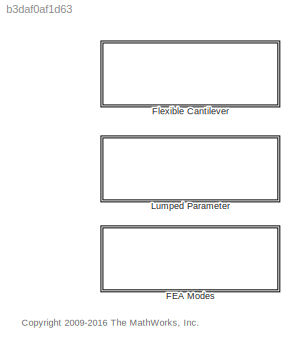
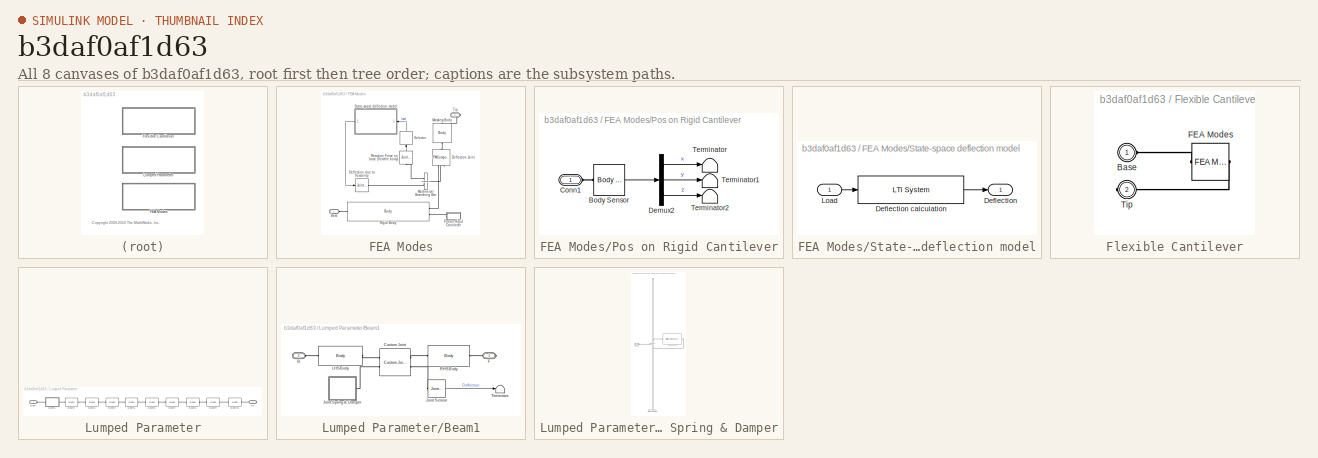
[diagram: thumbnail index - all 8 canvases of the model, root first then tree order]
MODEL slx_b3daf0af1d63
KIND library
CONFIG AbsTol = auto
CONFIG EnableMultiTasking = off
CONFIG FixedStep = auto
CONFIG MaxStep = auto
CONFIG MinStep = auto
CONFIG RelTol = 1e-3
CONFIG SampleTimeConstraint = Unconstrained
CONFIG Solver = ode45
CONFIG SolverName = ode45
CONFIG StartTime = 0.0
CONFIG StopTime = 10.0
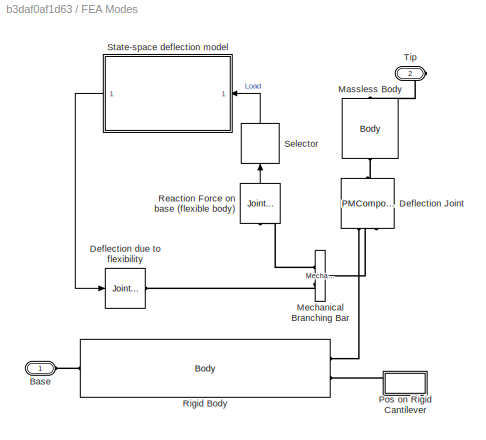
BLOCK [SubSystem] FEA Modes
  Ports = [0, 0, 0, 0, 0, 1, 1]
  RequestExecContextInheritance = off
  ShowPortLabels = FromPortBlockName
  Variant = off
BLOCK [PMIOPort] FEA Modes/Base
  Port = 1
  Side = Left
BLOCK [PMComponent] FEA Modes/Deflection Joint
  CloseFcn = mech_support('CloseFcn',gcbh);
  CopyFcn = mech_rtmsupport('CopyFcn',gcbh);mech_support('CopyFcn',gcbh);
  DeleteFcn = mech_rtmsupport('DeleteFcn',gcbh);mech_support('DeleteFcn',gcbh);
  DialogController = MECH.DynMechDlgSource
  InitFcn = mech_support('InitFcn');
  LConnTagsString = __newl0|SA1
  LeftPortType = blob
  LoadFcn = mech_rtmsupport('LoadFcn',gcbh);mech_support('LoadFcn',gcbh);
  ModelCloseFcn = mech_support('ModelCloseFcn',gcbh);
  NameChangeFcn = mech_support('NameChangeFcn',gcbh);
  PhysicalDomain = mechanical
  Ports = [0, 0, 0, 0, 0, 2, 1]
  PostSaveFcn = mech_rtmsupport('PostSaveFcn',gcbh);mech_support('PostSaveFcn');
  PreCopyFcn = mech_rtmsupport('PreCopyFcn',gcbh);
  PreDeleteFcn = mech_rtmsupport('PreDeleteFcn',gcbh);
  PreSaveFcn = mech_rtmsupport('PreSaveFcn',gcbh);mech_support('PreSaveFcn');
  RConnTagsString = __newr0
  RightPortType = blob
  StartFcn = mech_support('StartFcn',gcbh);
  StopFcn = mech_support('StopFcn',gcbh);
  SubClassName = Unknown
  UndoDeleteFcn = mech_support('UndoDeleteFcn',gcbh);
BLOCK [Reference] FEA Modes/Deflection due to flexibility  REF=mblibv1/Sensors & 
Actuators/Joint Actuator
  Ports = [1, 0, 0, 0, 0, 0, 1]
  SourceBlock = mblibv1/Sensors & \nActuators/Joint Actuator
  SourceType = Joint Actuator
BLOCK [Reference] FEA Modes/Massless Body  REF=mblibv1/Bodies/Body
  Ports = [0, 0, 0, 0, 0, 1, 1]
  SourceBlock = mblibv1/Bodies/Body
  SourceType = Body
BLOCK [Reference] FEA Modes/Mechanical Branching Bar  REF=mblibv1/Utilities/Mechanical
Branching
Bar
  Ports = [0, 0, 0, 0, 0, 1, 2]
  SourceBlock = mblibv1/Utilities/Mechanical\nBranching\nBar
  SourceType = Mechanical Branching Bar
BLOCK [SubSystem] FEA Modes/Pos on Rigid Cantilever
  Ports = [0, 0, 0, 0, 0, 1]
  RequestExecContextInheritance = off
  Variant = off
BLOCK [Reference] FEA Modes/Pos on Rigid Cantilever/Body Sensor  REF=mblibv1/Sensors & 
Actuators/Body Sensor
  Ports = [0, 1, 0, 0, 0, 1]
  SourceBlock = mblibv1/Sensors & \nActuators/Body Sensor
  SourceType = Body Sensor
BLOCK [PMIOPort] FEA Modes/Pos on Rigid Cantilever/Conn1
  Port = 1
  Side = Left
BLOCK [Demux] FEA Modes/Pos on Rigid Cantilever/Demux2
  DisplayOption = bar
  Outputs = 3
  Ports = [1, 3]
BLOCK [Terminator] FEA Modes/Pos on Rigid Cantilever/Terminator
BLOCK [Terminator] FEA Modes/Pos on Rigid Cantilever/Terminator1
BLOCK [Terminator] FEA Modes/Pos on Rigid Cantilever/Terminator2
BLOCK [Reference] FEA Modes/Reaction Force on base (flexible body)  REF=mblibv1/Sensors & 
Actuators/Joint Sensor
  Ports = [0, 1, 0, 0, 0, 1]
  SourceBlock = mblibv1/Sensors & \nActuators/Joint Sensor
  SourceType = Joint Sensor
BLOCK [Reference] FEA Modes/Rigid Body  REF=mblibv1/Bodies/Body
  Ports = [0, 0, 0, 0, 0, 1, 2]
  SourceBlock = mblibv1/Bodies/Body
  SourceType = Body
BLOCK [Selector] FEA Modes/Selector
  IndexOptions = Index vector (dialog)
  Indices = [2]
  InputPortWidth = 3
  OutputSizes = 1
  Ports = [1, 1]
BLOCK [SubSystem] FEA Modes/State-space deflection model
  Ports = [1, 1]
  RequestExecContextInheritance = off
  Variant = off
BLOCK [Outport] FEA Modes/State-space deflection model/Deflection
  IconDisplay = Port number
BLOCK [Reference] FEA Modes/State-space deflection model/Deflection calculation  REF=cstblocks/LTI System
  Ports = [1, 1]
  SourceBlock = cstblocks/LTI System
  SourceType = LTI Block
BLOCK [Inport] FEA Modes/State-space deflection model/Load
  IconDisplay = Port number
BLOCK [PMIOPort] FEA Modes/Tip
  Port = 2
  Side = Right
BLOCK [SubSystem] Flexible Cantilever
  BlockChoice = FEA Modes
  MemberBlocks = FEA Modes,Lumped Parameter
  Ports = [0, 0, 0, 0, 0, 1, 1]
  RequestExecContextInheritance = off
  TemplateBlock = self
  Variant = off
BLOCK [PMIOPort] Flexible Cantilever/Base
  Port = 1
  Side = Left
BLOCK [Reference] Flexible Cantilever/FEA Modes  REF=Flex_Cantilever_Lib/FEA Modes
  Ports = [0, 0, 0, 0, 0, 1, 1]
  SourceBlock = Flex_Cantilever_Lib/FEA Modes
  SourceType = Cantilever
BLOCK [PMIOPort] Flexible Cantilever/Tip
  Port = 2
  Side = Right
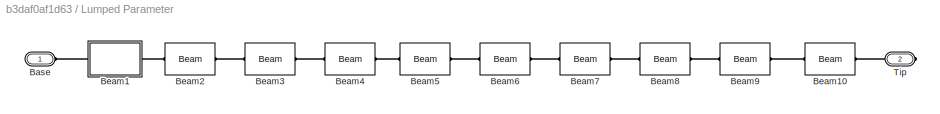
BLOCK [SubSystem] Lumped Parameter
  Ports = [0, 0, 0, 0, 0, 1, 1]
  RequestExecContextInheritance = off
  Variant = off
BLOCK [PMIOPort] Lumped Parameter/Base
  Port = 1
  Side = Left
BLOCK [SubSystem] Lumped Parameter/Beam1
  Ports = [0, 0, 0, 0, 0, 1, 1]
  RequestExecContextInheritance = off
  Variant = off
BLOCK [PMIOPort] Lumped Parameter/Beam1/B
  Port = 2
  Side = Left
BLOCK [Reference] Lumped Parameter/Beam1/Custom Joint  REF=mblibv1/Joints/Custom Joint
  Ports = [0, 0, 0, 0, 0, 2, 2]
  SourceBlock = mblibv1/Joints/Custom Joint
  SourceType = Custom Joint
BLOCK [PMIOPort] Lumped Parameter/Beam1/F
  Port = 1
  Side = Right
BLOCK [Reference] Lumped Parameter/Beam1/Joint Sensor  REF=mblibv1/Sensors & 
Actuators/Joint Sensor
  Ports = [0, 1, 0, 0, 0, 1]
  SourceBlock = mblibv1/Sensors & \nActuators/Joint Sensor
  SourceType = Joint Sensor
BLOCK [SubSystem] Lumped Parameter/Beam1/Joint Spring & Damper
  CloseFcn = mech_support('CloseFcn',gcbh);
  CopyFcn = mech_rtmsupport('CopyFcn',gcbh);mech_support('CopyFcn',gcbh);
  DeleteFcn = mech_rtmsupport('DeleteFcn',gcbh);mech_support('DeleteFcn',gcbh);
  DialogController = MECH.DynMechDlgSource
  LoadFcn = mech_rtmsupport('LoadFcn',gcbh);mech_support('LoadFcn',gcbh);
  ModelCloseFcn = mech_support('ModelCloseFcn',gcbh);
  NameChangeFcn = mech_support('NameChangeFcn',gcbh);
  Ports = [0, 0, 0, 0, 0, 1]
  PostSaveFcn = mech_rtmsupport('PostSaveFcn',gcbh);mech_support('PostSaveFcn');
  PreCopyFcn = mech_rtmsupport('PreCopyFcn',gcbh);
  PreDeleteFcn = mech_rtmsupport('PreDeleteFcn',gcbh);
  PreSaveFcn = mech_rtmsupport('PreSaveFcn',gcbh);mech_support('PreSaveFcn');
  RequestExecContextInheritance = off
  StartFcn = mech_support('StartFcn',gcbh);
  StopFcn = mech_support('StopFcn',gcbh);
  UndoDeleteFcn = mech_support('UndoDeleteFcn',gcbh);
  Variant = off
BLOCK [PMIOPort] Lumped Parameter/Beam1/Joint Spring & Damper/Conn1
  Port = 1
  Side = Left
BLOCK [Reference] Lumped Parameter/Beam1/Joint Spring & Damper/Mechanical Branching Bar  REF=mblibv1/Utilities/Mechanical
Branching
Bar
  Ports = [0, 0, 0, 0, 0, 1, 14]
  SourceBlock = mblibv1/Utilities/Mechanical\nBranching\nBar
  SourceType = Mechanical Branching Bar
BLOCK [Reference] Lumped Parameter/Beam1/Joint Spring & Damper/SpringDamper4  REF=SingleDofForceElement/Primitive Spring&Damper
  Ports = [0, 0, 0, 0, 0, 1, 1]
  SourceBlock = SingleDofForceElement/Primitive Spring&Damper
BLOCK [Reference] Lumped Parameter/Beam1/LHSBody  REF=mblibv1/Bodies/Body
  Ports = [0, 0, 0, 0, 0, 1, 1]
  SourceBlock = mblibv1/Bodies/Body
  SourceType = Body
BLOCK [Reference] Lumped Parameter/Beam1/RHSBody  REF=mblibv1/Bodies/Body
  Ports = [0, 0, 0, 0, 0, 1, 1]
  SourceBlock = mblibv1/Bodies/Body
  SourceType = Body
BLOCK [Terminator] Lumped Parameter/Beam1/Terminator
BLOCK [Reference] Lumped Parameter/Beam10  REF=Flex_Cantilever_Element_Lib/Beam
  Ports = [0, 0, 0, 0, 0, 1, 1]
  SourceBlock = Flex_Cantilever_Element_Lib/Beam
  SourceType = SubSystem
BLOCK [Reference] Lumped Parameter/Beam2  REF=Flex_Cantilever_Element_Lib/Beam
  Ports = [0, 0, 0, 0, 0, 1, 1]
  SourceBlock = Flex_Cantilever_Element_Lib/Beam
  SourceType = SubSystem
BLOCK [Reference] Lumped Parameter/Beam3  REF=Flex_Cantilever_Element_Lib/Beam
  Ports = [0, 0, 0, 0, 0, 1, 1]
  SourceBlock = Flex_Cantilever_Element_Lib/Beam
  SourceType = SubSystem
BLOCK [Reference] Lumped Parameter/Beam4  REF=Flex_Cantilever_Element_Lib/Beam
  Ports = [0, 0, 0, 0, 0, 1, 1]
  SourceBlock = Flex_Cantilever_Element_Lib/Beam
  SourceType = SubSystem
BLOCK [Reference] Lumped Parameter/Beam5  REF=Flex_Cantilever_Element_Lib/Beam
  Ports = [0, 0, 0, 0, 0, 1, 1]
  SourceBlock = Flex_Cantilever_Element_Lib/Beam
  SourceType = SubSystem
BLOCK [Reference] Lumped Parameter/Beam6  REF=Flex_Cantilever_Element_Lib/Beam
  Ports = [0, 0, 0, 0, 0, 1, 1]
  SourceBlock = Flex_Cantilever_Element_Lib/Beam
  SourceType = SubSystem
BLOCK [Reference] Lumped Parameter/Beam7  REF=Flex_Cantilever_Element_Lib/Beam
  Ports = [0, 0, 0, 0, 0, 1, 1]
  SourceBlock = Flex_Cantilever_Element_Lib/Beam
  SourceType = SubSystem
BLOCK [Reference] Lumped Parameter/Beam8  REF=Flex_Cantilever_Element_Lib/Beam
  Ports = [0, 0, 0, 0, 0, 1, 1]
  SourceBlock = Flex_Cantilever_Element_Lib/Beam
  SourceType = SubSystem
BLOCK [Reference] Lumped Parameter/Beam9  REF=Flex_Cantilever_Element_Lib/Beam
  Ports = [0, 0, 0, 0, 0, 1, 1]
  SourceBlock = Flex_Cantilever_Element_Lib/Beam
  SourceType = SubSystem
BLOCK [PMIOPort] Lumped Parameter/Tip
  Port = 2
  Side = Right
ANNOTATION (root): <copyright redacted>
LINE FEA Modes/Pos on Rigid Cantilever/Body Sensor:1 -> FEA Modes/Pos on Rigid Cantilever/Demux2:1
LINE FEA Modes/Pos on Rigid Cantilever/Demux2:1 -> FEA Modes/Pos on Rigid Cantilever/Terminator:1
LINE FEA Modes/Pos on Rigid Cantilever/Demux2:2 -> FEA Modes/Pos on Rigid Cantilever/Terminator1:1
LINE FEA Modes/Pos on Rigid Cantilever/Demux2:3 -> FEA Modes/Pos on Rigid Cantilever/Terminator2:1
LINE FEA Modes/Reaction Force on base (flexible body):1 -> FEA Modes/Selector:1
LINE FEA Modes/Selector:1 -> FEA Modes/State-space deflection model:1
LINE FEA Modes/State-space deflection model/Deflection calculation:1 -> FEA Modes/State-space deflection model/Deflection:1
LINE FEA Modes/State-space deflection model/Load:1 -> FEA Modes/State-space deflection model/Deflection calculation:1
LINE FEA Modes/State-space deflection model:1 -> FEA Modes/Deflection due to flexibility:1
LINE Lumped Parameter/Beam1/Joint Sensor:1 -> Lumped Parameter/Beam1/Terminator:1
PLINE FEA Modes/Base:RConn1 -- FEA Modes/Rigid Body:LConn1
PLINE FEA Modes/Deflection Joint:LConn1 -- FEA Modes/Rigid Body:RConn1
PLINE FEA Modes/Deflection Joint:LConn2 -- FEA Modes/Mechanical Branching Bar:LConn1
PLINE FEA Modes/Deflection Joint:RConn1 -- FEA Modes/Massless Body:LConn1
PLINE FEA Modes/Deflection due to flexibility:RConn1 -- FEA Modes/Mechanical Branching Bar:RConn2
PLINE FEA Modes/Massless Body:RConn1 -- FEA Modes/Tip:RConn1
PLINE FEA Modes/Mechanical Branching Bar:RConn1 -- FEA Modes/Reaction Force on base (flexible body):LConn1
PLINE FEA Modes/Pos on Rigid Cantilever/Body Sensor:LConn1 -- FEA Modes/Pos on Rigid Cantilever/Conn1:RConn1
PLINE FEA Modes/Pos on Rigid Cantilever:LConn1 -- FEA Modes/Rigid Body:RConn2
PLINE Flexible Cantilever/Base:RConn1 -- Flexible Cantilever/FEA Modes:LConn1
PLINE Flexible Cantilever/FEA Modes:RConn1 -- Flexible Cantilever/Tip:RConn1
PLINE Lumped Parameter/Base:RConn1 -- Lumped Parameter/Beam1:LConn1
PLINE Lumped Parameter/Beam1/B:RConn1 -- Lumped Parameter/Beam1/LHSBody:LConn1
PLINE Lumped Parameter/Beam1/Custom Joint:LConn1 -- Lumped Parameter/Beam1/LHSBody:RConn1
PLINE Lumped Parameter/Beam1/Custom Joint:LConn2 -- Lumped Parameter/Beam1/Joint Spring & Damper:LConn1
PLINE Lumped Parameter/Beam1/Custom Joint:RConn1 -- Lumped Parameter/Beam1/RHSBody:LConn1
PLINE Lumped Parameter/Beam1/Custom Joint:RConn2 -- Lumped Parameter/Beam1/Joint Sensor:LConn1
PLINE Lumped Parameter/Beam1/F:RConn1 -- Lumped Parameter/Beam1/RHSBody:RConn1
PLINE Lumped Parameter/Beam10:LConn1 -- Lumped Parameter/Beam9:RConn1
PLINE Lumped Parameter/Beam10:RConn1 -- Lumped Parameter/Tip:RConn1
PLINE Lumped Parameter/Beam1:RConn1 -- Lumped Parameter/Beam2:LConn1
PLINE Lumped Parameter/Beam2:RConn1 -- Lumped Parameter/Beam3:LConn1
PLINE Lumped Parameter/Beam3:RConn1 -- Lumped Parameter/Beam4:LConn1
PLINE Lumped Parameter/Beam4:RConn1 -- Lumped Parameter/Beam5:LConn1
PLINE Lumped Parameter/Beam5:RConn1 -- Lumped Parameter/Beam6:LConn1
PLINE Lumped Parameter/Beam6:RConn1 -- Lumped Parameter/Beam7:LConn1
PLINE Lumped Parameter/Beam7:RConn1 -- Lumped Parameter/Beam8:LConn1
PLINE Lumped Parameter/Beam8:RConn1 -- Lumped Parameter/Beam9:LConn1
